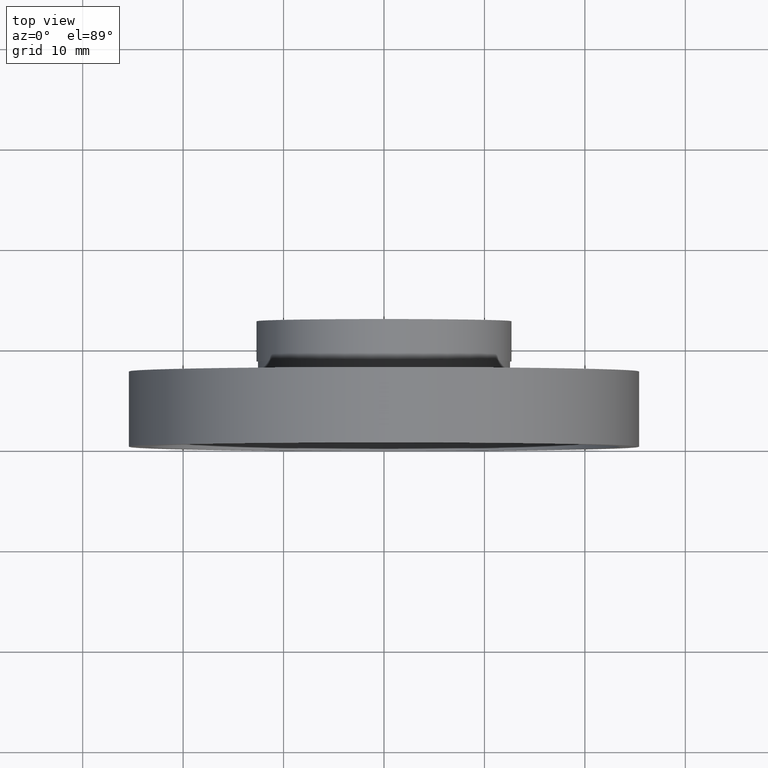
[diagram: clean part render]
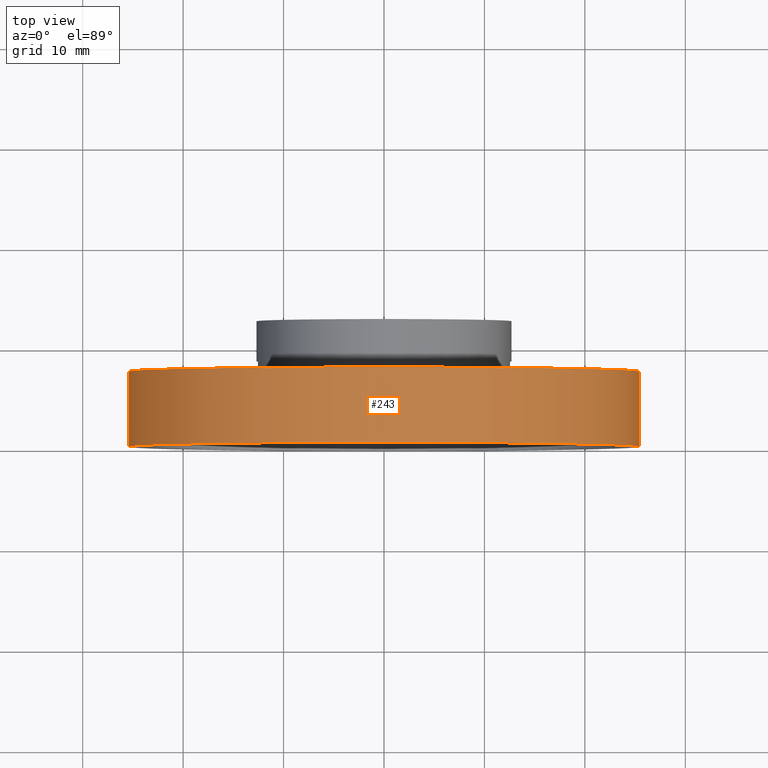
[diagram: same view with one face highlighted and labeled with its STEP entity id]
A machine part, top view. The second image highlights one B-rep face of the part: STEP entity #243.
In plain terms, the highlighted cylindrical surface (partial cylindrical patch) has radius 25.4 mm, axis along (-0, 1, -0).
Its self-contained STEP definition (entity closure, byte-faithful):
#11 = VERTEX_POINT ( 'NONE', #434 ) ;
#82 = CIRCLE ( 'NONE', #222, 25.39999999999999900 ) ;
#106 = EDGE_LOOP ( 'NONE', ( #107, #167, #538, #560 ) ) ;
#107 = ORIENTED_EDGE ( 'NONE', *, *, #519, .T. ) ;
#111 = DIRECTION ( 'NONE',  ( -1.224646799147351000E-016, 1.000000000000000000, -0.0000000000000000000 ) ) ;
#112 = AXIS2_PLACEMENT_3D ( 'NONE', #274, #435, #480 ) ;
#124 = EDGE_CURVE ( 'NONE', #147, #162, #242, .T. ) ;
#147 = VERTEX_POINT ( 'NONE', #443 ) ;
#153 = LINE ( 'NONE', #417, #403 ) ;
#156 = CARTESIAN_POINT ( 'NONE',  ( 1.149455719078123100E-015, 7.499999999999996400, 0.0000000000000000000 ) ) ;
#162 = VERTEX_POINT ( 'NONE', #342 ) ;
#164 = DIRECTION ( 'NONE',  ( -1.000000000000000000, -1.365923996832131600E-016, 0.0000000000000000000 ) ) ;
#167 = ORIENTED_EDGE ( 'NONE', *, *, #477, .T. ) ;
#201 = DIRECTION ( 'NONE',  ( -1.224646799147351000E-016, 1.000000000000000000, -0.0000000000000000000 ) ) ;
#210 = CARTESIAN_POINT ( 'NONE',  ( 0.0000000000000000000, 16.88601823708207700, 0.0000000000000000000 ) ) ;
#222 = AXIS2_PLACEMENT_3D ( 'NONE', #156, #201, #551 ) ;
#229 = VECTOR ( 'NONE', #291, 1000.000000000000000 ) ;
#242 = LINE ( 'NONE', #340, #229 ) ;
#243 = ADVANCED_FACE ( 'NONE', ( #571 ), #453, .T. ) ;
#247 = VERTEX_POINT ( 'NONE', #307 ) ;
#274 = CARTESIAN_POINT ( 'NONE',  ( 2.067940818438636500E-015, -3.469446951953614200E-015, 0.0000000000000000000 ) ) ;
#279 = DIRECTION ( 'NONE',  ( -1.224646799147351000E-016, 1.000000000000000000, -0.0000000000000000000 ) ) ;
#291 = DIRECTION ( 'NONE',  ( -1.224646799147351000E-016, 1.000000000000000000, -0.0000000000000000000 ) ) ;
#307 = CARTESIAN_POINT ( 'NONE',  ( 25.39999999999999900, 7.500000000000000000, 3.110602869834276900E-015 ) ) ;
#340 = CARTESIAN_POINT ( 'NONE',  ( -25.39999999999999900, 16.88601823708207300, 0.0000000000000000000 ) ) ;
#342 = CARTESIAN_POINT ( 'NONE',  ( -25.39999999999999900, 7.499999999999992900, 0.0000000000000000000 ) ) ;
#358 = CIRCLE ( 'NONE', #112, 25.39999999999999500 ) ;
#363 = EDGE_CURVE ( 'NONE', #162, #247, #82, .T. ) ;
#378 = AXIS2_PLACEMENT_3D ( 'NONE', #210, #279, #164 ) ;
#403 = VECTOR ( 'NONE', #111, 1000.000000000000000 ) ;
#417 = CARTESIAN_POINT ( 'NONE',  ( 25.39999999999999900, 16.88601823708208000, 3.110602869834276900E-015 ) ) ;
#434 = CARTESIAN_POINT ( 'NONE',  ( 25.39999999999999900, -3.588440821193433400E-016, 3.110602869834276900E-015 ) ) ;
#435 = DIRECTION ( 'NONE',  ( -1.224646799147351000E-016, 1.000000000000000000, -0.0000000000000000000 ) ) ;
#443 = CARTESIAN_POINT ( 'NONE',  ( -25.39999999999999100, -6.580049821787884700E-015, 0.0000000000000000000 ) ) ;
#453 = CYLINDRICAL_SURFACE ( 'NONE', #378, 25.39999999999999900 ) ;
#477 = EDGE_CURVE ( 'NONE', #11, #247, #153, .T. ) ;
#480 = DIRECTION ( 'NONE',  ( -1.000000000000000000, -1.224646799147351000E-016, 0.0000000000000000000 ) ) ;
#519 = EDGE_CURVE ( 'NONE', #147, #11, #358, .T. ) ;
#538 = ORIENTED_EDGE ( 'NONE', *, *, #363, .F. ) ;
#551 = DIRECTION ( 'NONE',  ( -1.000000000000000000, -1.365923996832131600E-016, 0.0000000000000000000 ) ) ;
#560 = ORIENTED_EDGE ( 'NONE', *, *, #124, .F. ) ;
#571 = FACE_OUTER_BOUND ( 'NONE', #106, .T. ) ;